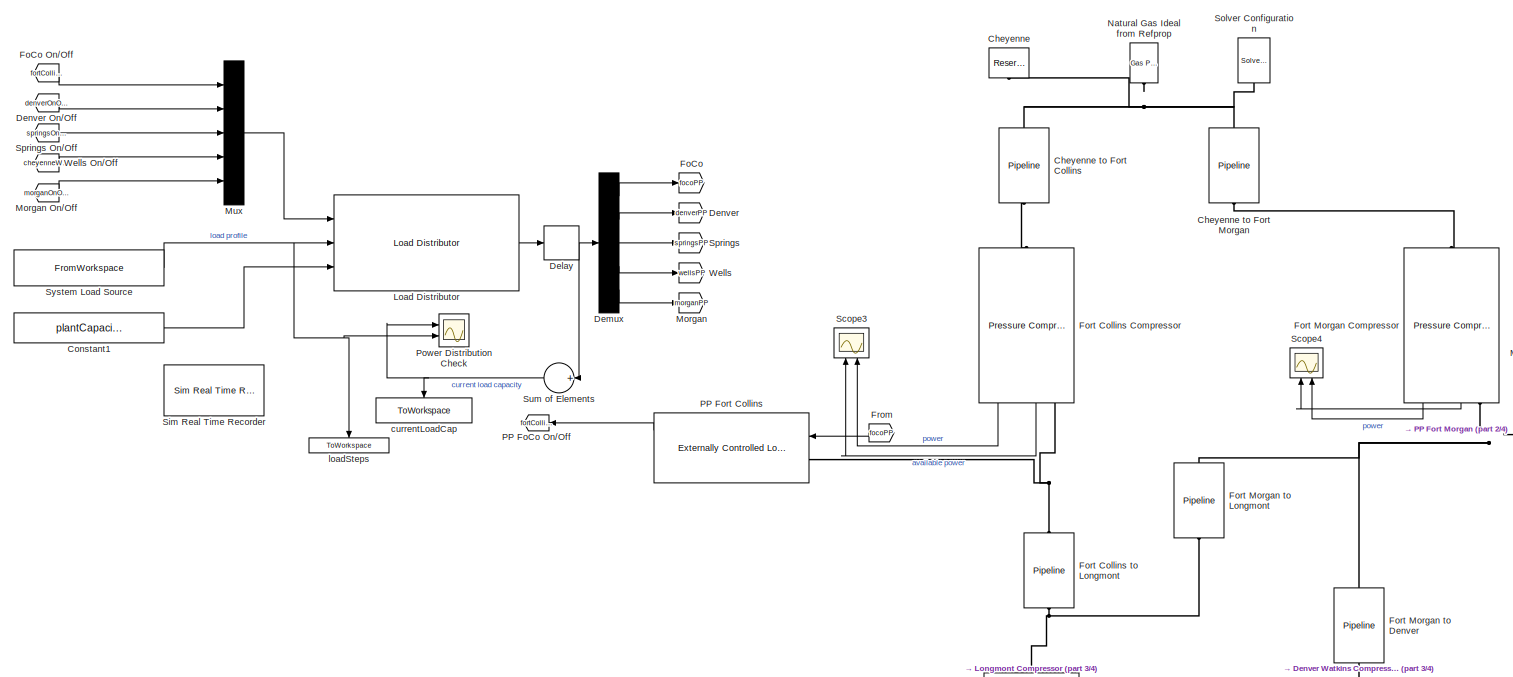
[diagram: root canvas - part 1/4, full width, top band]
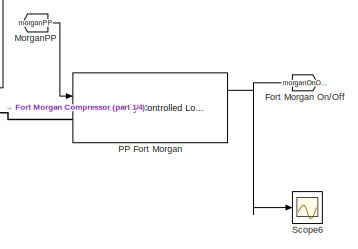
[diagram: root canvas - part 2/4, top right region]
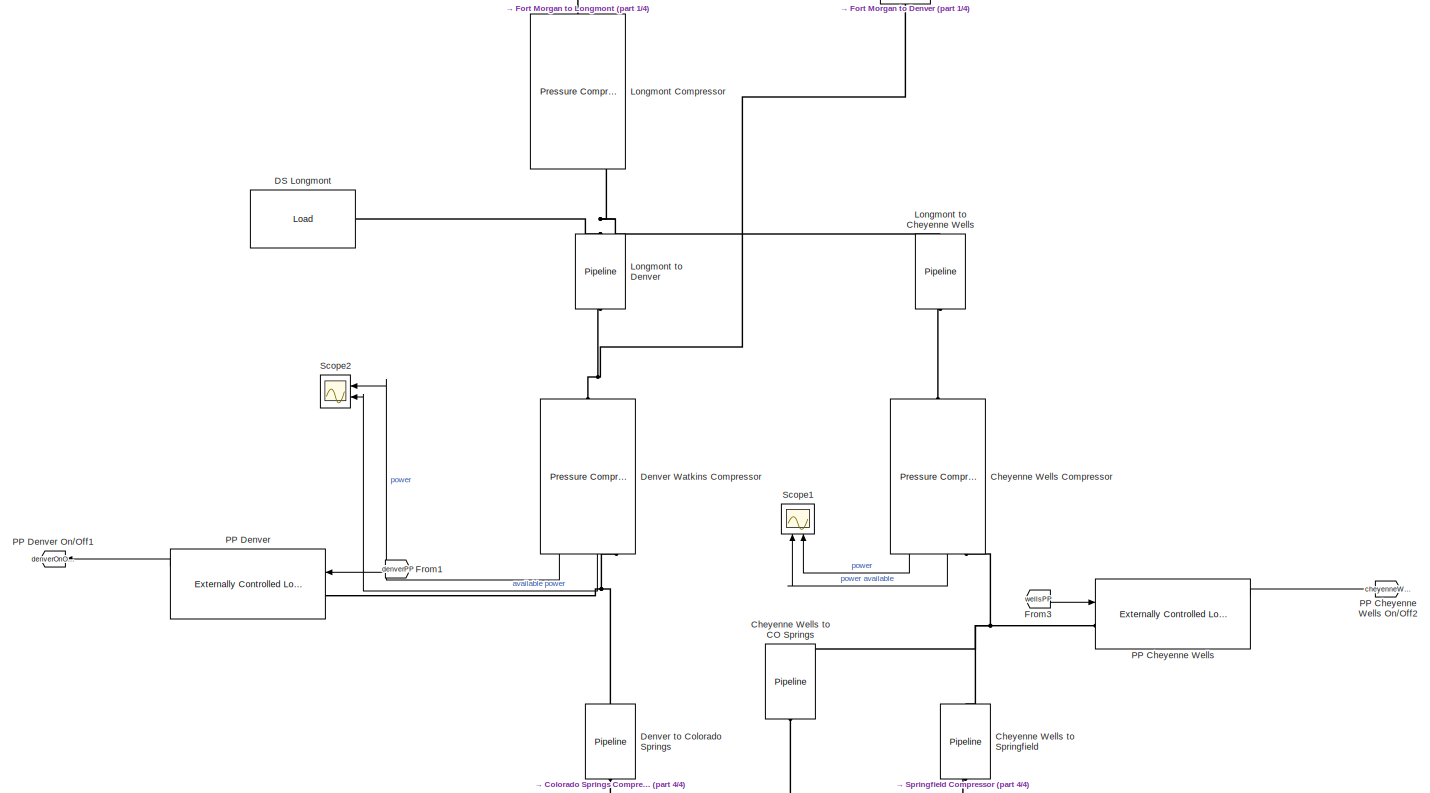
[diagram: root canvas - part 3/4, full width, middle band]
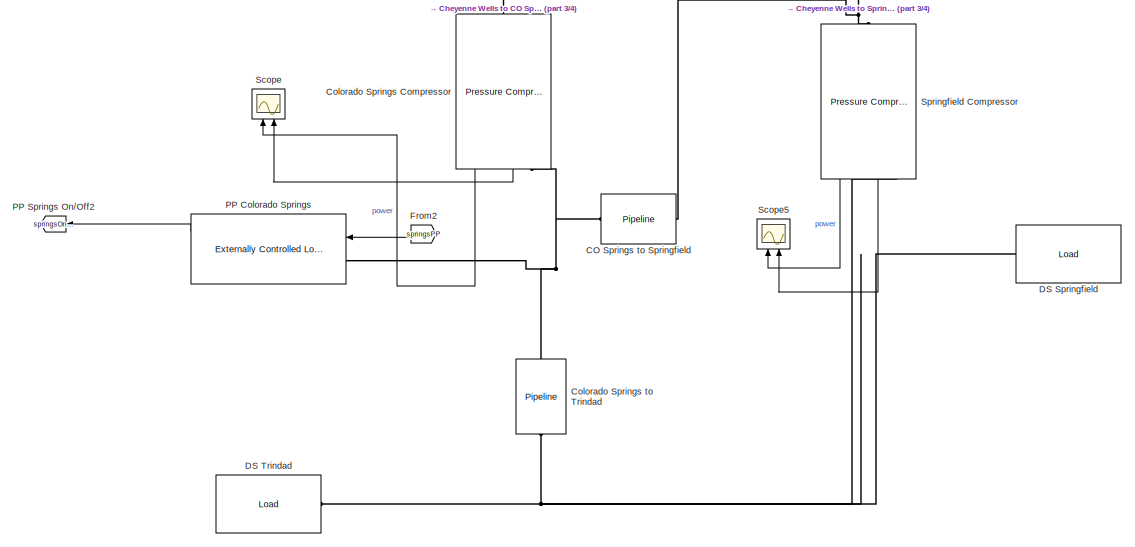
[diagram: root canvas - part 4/4, bottom center region]
MODEL slx_88974bddc78a
KIND model
CONFIG AbsTol = auto
CONFIG EnableMultiTasking = off
CONFIG FixedStep = auto
CONFIG MaxStep = auto
CONFIG MinStep = auto
CONFIG RelTol = 1e-3
CONFIG SampleTimeConstraint = Unconstrained
CONFIG Solver = VariableStepAuto
CONFIG SolverName = VariableStepAuto
CONFIG StartTime = 0.0
CONFIG StopTime = 432000
BLOCK [Reference] CO Springs to Springfield  REF=gasLibrary/Pipeline
  Ports = [0, 0, 0, 0, 0, 1, 1]
  SourceBlock = gasLibrary/Pipeline
BLOCK [Reference] Cheyenne  REF=fl_lib/Gas/Elements/Reservoir (G)
  Ports = [0, 0, 0, 0, 0, 1]
  SourceBlock = fl_lib/Gas/Elements/Reservoir (G)
  SourceProductName = Foundation Library
  SourceType = Reservoir (G)
BLOCK [Reference] Cheyenne Wells Compressor  REF=gasLibrary/Pressure Compressor - Integrated Network Setter
  Ports = [0, 3, 0, 0, 0, 1, 1]
  SourceBlock = gasLibrary/Pressure Compressor - Integrated Network Setter
BLOCK [Reference] Cheyenne Wells to CO Springs  REF=gasLibrary/Pipeline
  Ports = [0, 0, 0, 0, 0, 1, 1]
  SourceBlock = gasLibrary/Pipeline
BLOCK [Reference] Cheyenne Wells to Springfield  REF=gasLibrary/Pipeline
  Ports = [0, 0, 0, 0, 0, 1, 1]
  SourceBlock = gasLibrary/Pipeline
BLOCK [Reference] Cheyenne to Fort Collins  REF=gasLibrary/Pipeline
  Ports = [0, 0, 0, 0, 0, 1, 1]
  SourceBlock = gasLibrary/Pipeline
BLOCK [Reference] Cheyenne to Fort Morgan  REF=gasLibrary/Pipeline
  Ports = [0, 0, 0, 0, 0, 1, 1]
  SourceBlock = gasLibrary/Pipeline
BLOCK [Reference] Colorado Springs Compressor  REF=gasLibrary/Pressure Compressor - Integrated Network Setter
  Ports = [0, 3, 0, 0, 0, 1, 1]
  SourceBlock = gasLibrary/Pressure Compressor - Integrated Network Setter
BLOCK [Reference] Colorado Springs to Trindad  REF=gasLibrary/Pipeline
  Ports = [0, 0, 0, 0, 0, 1, 1]
  SourceBlock = gasLibrary/Pipeline
BLOCK [Constant] Constant1
  Value = plantCapacities
BLOCK [Reference] DS Longmont  REF=gasLibrary/Load
  Ports = [0, 3, 0, 0, 0, 1]
  SourceBlock = gasLibrary/Load
BLOCK [Reference] DS Springfield  REF=gasLibrary/Load
  Ports = [0, 3, 0, 0, 0, 1]
  SourceBlock = gasLibrary/Load
BLOCK [Reference] DS Trindad  REF=gasLibrary/Load
  Ports = [0, 3, 0, 0, 0, 1]
  SourceBlock = gasLibrary/Load
BLOCK [Delay] Delay
  InputPortMap = u0
  Ports = [1, 1]
  SampleTime = 30
BLOCK [Demux] Demux
  DisplayOption = bar
  Outputs = 5
  Ports = [1, 5]
BLOCK [Goto] Denver
  GotoTag = denverPP
BLOCK [From] Denver On//Off
  GotoTag = denverOnOff
BLOCK [Reference] Denver Watkins Compressor  REF=gasLibrary/Pressure Compressor - Integrated Network Setter
  Ports = [0, 3, 0, 0, 0, 1, 1]
  SourceBlock = gasLibrary/Pressure Compressor - Integrated Network Setter
BLOCK [Reference] Denver to Colorado Springs  REF=gasLibrary/Pipeline
  Ports = [0, 0, 0, 0, 0, 1, 1]
  SourceBlock = gasLibrary/Pipeline
BLOCK [Goto] FoCo
  GotoTag = focoPP
BLOCK [From] FoCo On//Off
  GotoTag = fortCollinsOnOff
BLOCK [Reference] Fort Collins Compressor  REF=gasLibrary/Pressure Compressor - Integrated Network Setter
  Ports = [0, 3, 0, 0, 0, 1, 1]
  SourceBlock = gasLibrary/Pressure Compressor - Integrated Network Setter
BLOCK [Reference] Fort Collins to Longmont  REF=gasLibrary/Pipeline
  Ports = [0, 0, 0, 0, 0, 1, 1]
  SourceBlock = gasLibrary/Pipeline
BLOCK [Reference] Fort Morgan Compressor  REF=gasLibrary/Pressure Compressor - Integrated Network Setter
  Ports = [0, 3, 0, 0, 0, 1, 1]
  SourceBlock = gasLibrary/Pressure Compressor - Integrated Network Setter
BLOCK [Goto] Fort Morgan On//Off
  GotoTag = morganOnOff
BLOCK [Reference] Fort Morgan to Denver  REF=gasLibrary/Pipeline
  Ports = [0, 0, 0, 0, 0, 1, 1]
  SourceBlock = gasLibrary/Pipeline
BLOCK [Reference] Fort Morgan to Longmont  REF=gasLibrary/Pipeline
  Ports = [0, 0, 0, 0, 0, 1, 1]
  SourceBlock = gasLibrary/Pipeline
BLOCK [From] From
  GotoTag = focoPP
BLOCK [From] From1
  GotoTag = denverPP
BLOCK [From] From2
  GotoTag = springsPP
BLOCK [From] From3
  GotoTag = wellsPP
BLOCK [Reference] Load Distributor  REF=gasLibrary/Load Distributor
  Ports = [3, 1]
  SourceBlock = gasLibrary/Load Distributor
BLOCK [Reference] Longmont Compressor  REF=gasLibrary/Pressure Compressor - Integrated Network Setter
  Ports = [0, 3, 0, 0, 0, 1, 1]
  SourceBlock = gasLibrary/Pressure Compressor - Integrated Network Setter
BLOCK [Reference] Longmont to Cheyenne Wells  REF=gasLibrary/Pipeline
  Ports = [0, 0, 0, 0, 0, 1, 1]
  SourceBlock = gasLibrary/Pipeline
BLOCK [Reference] Longmont to Denver  REF=gasLibrary/Pipeline
  Ports = [0, 0, 0, 0, 0, 1, 1]
  SourceBlock = gasLibrary/Pipeline
BLOCK [Goto] Morgan
  GotoTag = morganPP
BLOCK [From] Morgan On//Off
  GotoTag = morganOnOff
BLOCK [From] MorganPP
  GotoTag = morganPP
BLOCK [Mux] Mux
  DisplayOption = bar
  Inputs = 5
  Ports = [5, 1]
BLOCK [Reference] Natural Gas Ideal from Refprop  REF=fl_lib/Gas/Utilities/Gas Properties (G)
  Ports = [0, 0, 0, 0, 0, 0, 1]
  SourceBlock = fl_lib/Gas/Utilities/Gas Properties (G)
  SourceProductName = Foundation Library
  SourceType = Gas Properties (G)
BLOCK [Reference] PP Cheyenne Wells  REF=gasLibrary/Externally Controlled Load
  Ports = [1, 3, 0, 0, 0, 1]
  SourceBlock = gasLibrary/Externally Controlled Load
BLOCK [Goto] PP Cheyenne Wells On//Off2
  GotoTag = cheyenneWellsOnOff
BLOCK [Reference] PP Colorado Springs  REF=gasLibrary/Externally Controlled Load
  Ports = [1, 3, 0, 0, 0, 1]
  SourceBlock = gasLibrary/Externally Controlled Load
BLOCK [Reference] PP Denver  REF=gasLibrary/Externally Controlled Load
  Ports = [1, 3, 0, 0, 0, 1]
  SourceBlock = gasLibrary/Externally Controlled Load
BLOCK [Goto] PP Denver On//Off1
  GotoTag = denverOnOff
BLOCK [Goto] PP FoCo On//Off
  GotoTag = fortCollinsOnOff
BLOCK [Reference] PP Fort Collins  REF=gasLibrary/Externally Controlled Load
  Ports = [1, 3, 0, 0, 0, 1]
  SourceBlock = gasLibrary/Externally Controlled Load
BLOCK [Reference] PP Fort Morgan  REF=gasLibrary/Externally Controlled Load
  Ports = [1, 3, 0, 0, 0, 1]
  SourceBlock = gasLibrary/Externally Controlled Load
BLOCK [Goto] PP Springs On//Off2
  GotoTag = springsOnOff
BLOCK [Scope] Power Distribution Check
  Floating = off
  NumInputPorts = 2
  Ports = [2]
  ScopeSpecificationString = Simulink.scopes.TimeScopeBlockCfg('CurrentConfiguration', extmgr.ConfigurationSet(extmgr.Configuration('Core','General UI',true,'FigureColor',[1 1 1]),extmgr.Configuration('Core','Source UI',true),extmgr.Configuration('Sources','WiredSimulink',true,'DataLoggingVariableName','ScopeData3'),extmgr.Configuration('Visuals','Time Domain',true,'SerializedDisplays',{struct('MinYLimReal','-50.00000','MaxYL...<+1709ch>
BLOCK [Scope] Scope
  Floating = off
  NumInputPorts = 2
  Ports = [2]
  ScopeSpecificationString = Simulink.scopes.TimeScopeBlockCfg('CurrentConfiguration', extmgr.ConfigurationSet(extmgr.Configuration('Core','General UI',true,'FigureColor',[1 1 1]),extmgr.Configuration('Core','Source UI',true),extmgr.Configuration('Sources','WiredSimulink',true,'DataLoggingVariableName','ScopeData1'),extmgr.Configuration('Visuals','Time Domain',true,'SerializedDisplays',{struct('MinYLimReal','-10.62919','MaxYL...<+1640ch>
BLOCK [Scope] Scope1
  Floating = off
  NumInputPorts = 2
  Ports = [2]
  ScopeSpecificationString = Simulink.scopes.TimeScopeBlockCfg('CurrentConfiguration', extmgr.ConfigurationSet(extmgr.Configuration('Core','General UI',true,'FigureColor',[1 1 1]),extmgr.Configuration('Core','Source UI',true),extmgr.Configuration('Sources','WiredSimulink',true,'DataLoggingVariableName','ScopeData1'),extmgr.Configuration('Visuals','Time Domain',true,'SerializedDisplays',{struct('MinYLimReal','-24.53241','MaxYL...<+1641ch>
BLOCK [Scope] Scope2
  Floating = off
  NumInputPorts = 2
  Ports = [2]
  ScopeSpecificationString = Simulink.scopes.TimeScopeBlockCfg('CurrentConfiguration', extmgr.ConfigurationSet(extmgr.Configuration('Core','General UI',true,'FigureColor',[1 1 1]),extmgr.Configuration('Core','Source UI',true),extmgr.Configuration('Sources','WiredSimulink',true,'DataLoggingVariableName','ScopeData2'),extmgr.Configuration('Visuals','Time Domain',true,'SerializedDisplays',{struct('MinYLimReal','-8.89637','MaxYLi...<+1651ch>
BLOCK [Scope] Scope3
  Floating = off
  NumInputPorts = 2
  Ports = [2]
  ScopeSpecificationString = Simulink.scopes.TimeScopeBlockCfg('CurrentConfiguration', extmgr.ConfigurationSet(extmgr.Configuration('Core','General UI',true),extmgr.Configuration('Core','Source UI',true),extmgr.Configuration('Sources','WiredSimulink',true,'DataLoggingVariableName','ScopeData1'),extmgr.Configuration('Visuals','Time Domain',true,'SerializedDisplays',{struct('MinYLimReal','-8.75286','MaxYLimReal','78.77398','YLa...<+1432ch>
BLOCK [Scope] Scope4
  Floating = off
  NumInputPorts = 2
  Ports = [2]
  ScopeSpecificationString = Simulink.scopes.TimeScopeBlockCfg('CurrentConfiguration', extmgr.ConfigurationSet(extmgr.Configuration('Core','General UI',true),extmgr.Configuration('Core','Source UI',true),extmgr.Configuration('Sources','WiredSimulink',true,'DataLoggingVariableName','ScopeData2'),extmgr.Configuration('Visuals','Time Domain',true,'SerializedDisplays',{struct('MinYLimReal','-1.82022','MaxYLimReal','16.38175','YLa...<+1414ch>
BLOCK [Scope] Scope5
  Floating = off
  NumInputPorts = 2
  Ports = [2]
  ScopeSpecificationString = Simulink.scopes.TimeScopeBlockCfg('CurrentConfiguration', extmgr.ConfigurationSet(extmgr.Configuration('Core','General UI',true),extmgr.Configuration('Core','Source UI',true),extmgr.Configuration('Sources','WiredSimulink',true,'DataLoggingVariableName','ScopeData1'),extmgr.Configuration('Visuals','Time Domain',true,'SerializedDisplays',{struct('MinYLimReal','-10.62919','MaxYLimReal','26.17339','YL...<+1403ch>
BLOCK [Scope] Scope6
  Floating = off
  NumInputPorts = 1
  Ports = [1]
  ScopeSpecificationString = Simulink.scopes.TimeScopeBlockCfg('CurrentConfiguration', extmgr.ConfigurationSet(extmgr.Configuration('Core','General UI',true),extmgr.Configuration('Core','Source UI',true),extmgr.Configuration('Sources','WiredSimulink',true,'DataLoggingVariableName','ScopeData1'),extmgr.Configuration('Visuals','Time Domain',true,'SerializedDisplays',{struct('MinYLimReal','0.9','MaxYLimReal','1.1','YLabelReal','...<+1346ch>
BLOCK [Reference] Sim Real Time Recorder  REF=gasLibrary/Sim Real Time Recorder
  Ports = [0, 2]
  SourceBlock = gasLibrary/Sim Real Time Recorder
BLOCK [Reference] Solver Configuration  REF=nesl_utility/Solver
Configuration
  Ports = [0, 0, 0, 0, 0, 0, 1]
  SourceBlock = nesl_utility/Solver\nConfiguration
  SourceProductBaseCode = SS
  SourceProductName = Simscape
  SourceType = Solver\nConfiguration
BLOCK [Reference] Springfield Compressor  REF=gasLibrary/Pressure Compressor - Integrated Network Setter
  Ports = [0, 3, 0, 0, 0, 1, 1]
  SourceBlock = gasLibrary/Pressure Compressor - Integrated Network Setter
BLOCK [Goto] Springs
  GotoTag = springsPP
BLOCK [From] Springs On//Off
  GotoTag = springsOnOff
BLOCK [Sum] Sum of Elements
  InputSameDT = off
  Inputs = +
  OutDataTypeStr = Inherit: Inherit via internal rule
  Ports = [1, 1]
  SaturateOnIntegerOverflow = off
BLOCK [FromWorkspace] System Load Source
  SampleTime = 0
  VariableName = timeseries(systemLoad.Load{1}, systemLoad.Time{1})
  ZeroCross = on
BLOCK [Goto] Wells
  GotoTag = wellsPP
BLOCK [From] Wells On//Off
  GotoTag = cheyenneWellsOnOff
BLOCK [ToWorkspace] currentLoadCap
  FixptAsFi = on
  MaxDataPoints = inf
  Ports = [1]
  SampleTime = -1
  SaveFormat = Timeseries
  VariableName = currentLoadCapacity
BLOCK [ToWorkspace] loadSteps
  FixptAsFi = on
  MaxDataPoints = inf
  Ports = [1]
  SampleTime = -1
  SaveFormat = Timeseries
  VariableName = loadSteps
LINE Cheyenne Wells Compressor:1 -> Scope1:2
LINE Cheyenne Wells Compressor:3 -> Scope1:1
LINE Colorado Springs Compressor:1 -> Scope:1
LINE Colorado Springs Compressor:3 -> Scope:2
LINE Constant1:1 -> Load Distributor:3
NET Delay:1 -> Demux:1, Sum of Elements:1
LINE Demux:1 -> FoCo:1
LINE Demux:2 -> Denver:1
LINE Demux:3 -> Springs:1
LINE Demux:4 -> Wells:1
LINE Demux:5 -> Morgan:1
LINE Denver On//Off:1 -> Mux:2
LINE Denver Watkins Compressor:1 -> Scope2:1
LINE Denver Watkins Compressor:3 -> Scope2:2
LINE FoCo On//Off:1 -> Mux:1
LINE Fort Collins Compressor:1 -> Scope3:2
LINE Fort Collins Compressor:3 -> Scope3:1
LINE Fort Morgan Compressor:1 -> Scope4:2
LINE Fort Morgan Compressor:3 -> Scope4:1
LINE From1:1 -> PP Denver:1
LINE From2:1 -> PP Colorado Springs:1
LINE From3:1 -> PP Cheyenne Wells:1
LINE From:1 -> PP Fort Collins:1
LINE Load Distributor:1 -> Delay:1
LINE Morgan On//Off:1 -> Mux:5
LINE MorganPP:1 -> PP Fort Morgan:1
LINE Mux:1 -> Load Distributor:1
LINE PP Cheyenne Wells:1 -> PP Cheyenne Wells On//Off2:1
LINE PP Colorado Springs:1 -> PP Springs On//Off2:1
LINE PP Denver:1 -> PP Denver On//Off1:1
LINE PP Fort Collins:1 -> PP FoCo On//Off:1
NET PP Fort Morgan:1 -> Fort Morgan On//Off:1, Scope6:1
LINE Springfield Compressor:1 -> Scope5:1
LINE Springfield Compressor:3 -> Scope5:2
LINE Springs On//Off:1 -> Mux:3
NET Sum of Elements:1 -> Power Distribution Check:1, currentLoadCap:1
NET System Load Source:1 -> Load Distributor:2, Power Distribution Check:2, loadSteps:1
LINE Wells On//Off:1 -> Mux:4
PNET net1: CO Springs to Springfield:LConn1 -- Colorado Springs Compressor:RConn1 -- Colorado Springs to Trindad:LConn1 -- PP Colorado Springs:LConn1
PNET net2: CO Springs to Springfield:RConn1 -- Cheyenne Wells to Springfield:RConn1 -- Springfield Compressor:LConn1
PLINE Cheyenne Wells Compressor:LConn1 -- Longmont to Cheyenne Wells:RConn1
PNET net3: Cheyenne Wells Compressor:RConn1 -- Cheyenne Wells to CO Springs:LConn1 -- Cheyenne Wells to Springfield:LConn1 -- PP Cheyenne Wells:LConn1
PNET net4: Cheyenne Wells to CO Springs:RConn1 -- Colorado Springs Compressor:LConn1 -- Denver to Colorado Springs:RConn1
PNET net5: Cheyenne to Fort Collins:LConn1 -- Cheyenne to Fort Morgan:LConn1 -- Cheyenne:LConn1 -- Natural Gas Ideal from Refprop:RConn1 -- Solver Configuration:RConn1
PLINE Cheyenne to Fort Collins:RConn1 -- Fort Collins Compressor:LConn1
PLINE Cheyenne to Fort Morgan:RConn1 -- Fort Morgan Compressor:LConn1
PNET net6: Colorado Springs to Trindad:RConn1 -- DS Springfield:LConn1 -- DS Trindad:LConn1 -- Springfield Compressor:RConn1
PNET net7: DS Longmont:LConn1 -- Longmont Compressor:RConn1 -- Longmont to Cheyenne Wells:LConn1 -- Longmont to Denver:LConn1
PNET net8: Denver Watkins Compressor:LConn1 -- Fort Morgan to Denver:RConn1 -- Longmont to Denver:RConn1
PNET net9: Denver Watkins Compressor:RConn1 -- Denver to Colorado Springs:LConn1 -- PP Denver:LConn1
PNET net10: Fort Collins Compressor:RConn1 -- Fort Collins to Longmont:LConn1 -- PP Fort Collins:LConn1
PNET net11: Fort Collins to Longmont:RConn1 -- Fort Morgan to Longmont:RConn1 -- Longmont Compressor:LConn1
PNET net12: Fort Morgan Compressor:RConn1 -- Fort Morgan to Denver:LConn1 -- Fort Morgan to Longmont:LConn1 -- PP Fort Morgan:LConn1
note: NET lines group one-source signal fan-out (src -> all destinations, sorted); 1:1 wires keep LINE; PNET lines group multi-terminal physical nets as a canonical sorted terminal list (undirected conserving connections); 2-terminal nets keep the pairwise PLINE form
